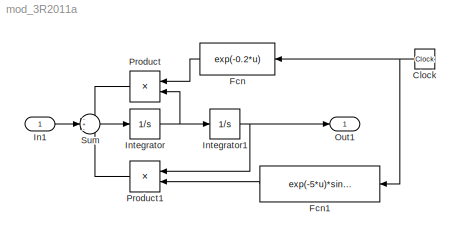
MODEL mod_3R2011a
KIND model
BLOCK [Clock] Clock
  SID = 14
BLOCK [Fcn] Fcn
  Expr = exp(-0.2*u)
  SID = 12
BLOCK [Fcn] Fcn1
  Expr = exp(-5*u)*sin(2*u+6)
  SID = 17
BLOCK [Inport] In1
  IconDisplay = Port number
  SID = 2
BLOCK [Integrator] Integrator
  Ports = [1, 1]
  SID = 8
BLOCK [Integrator] Integrator1
  Ports = [1, 1]
  SID = 13
BLOCK [Outport] Out1
  IconDisplay = Port number
  SID = 1
BLOCK [Product] Product
  InputSameDT = off
  OutDataTypeStr = Inherit: Inherit via internal rule
  Ports = [2, 1]
  SID = 15
  SaturateOnIntegerOverflow = off
BLOCK [Product] Product1
  InputSameDT = off
  OutDataTypeStr = Inherit: Inherit via internal rule
  Ports = [2, 1]
  SID = 16
  SaturateOnIntegerOverflow = off
BLOCK [Sum] Sum
  IconShape = round
  InputSameDT = off
  Inputs = -+-
  OutDataTypeStr = Inherit: Inherit via internal rule
  Ports = [3, 1]
  SID = 9
  SaturateOnIntegerOverflow = off
NET Clock:1 -> Fcn1:1, Fcn:1
LINE Fcn1:1 -> Product1:2
LINE Fcn:1 -> Product:1
LINE In1:1 -> Sum:2
NET Integrator1:1 -> Out1:1, Product1:1
NET Integrator:1 -> Integrator1:1, Product:2
LINE Product1:1 -> Sum:3
LINE Product:1 -> Sum:1
LINE Sum:1 -> Integrator:1
note: NET lines group one-source signal fan-out (src -> all destinations, sorted); 1:1 wires keep LINE
